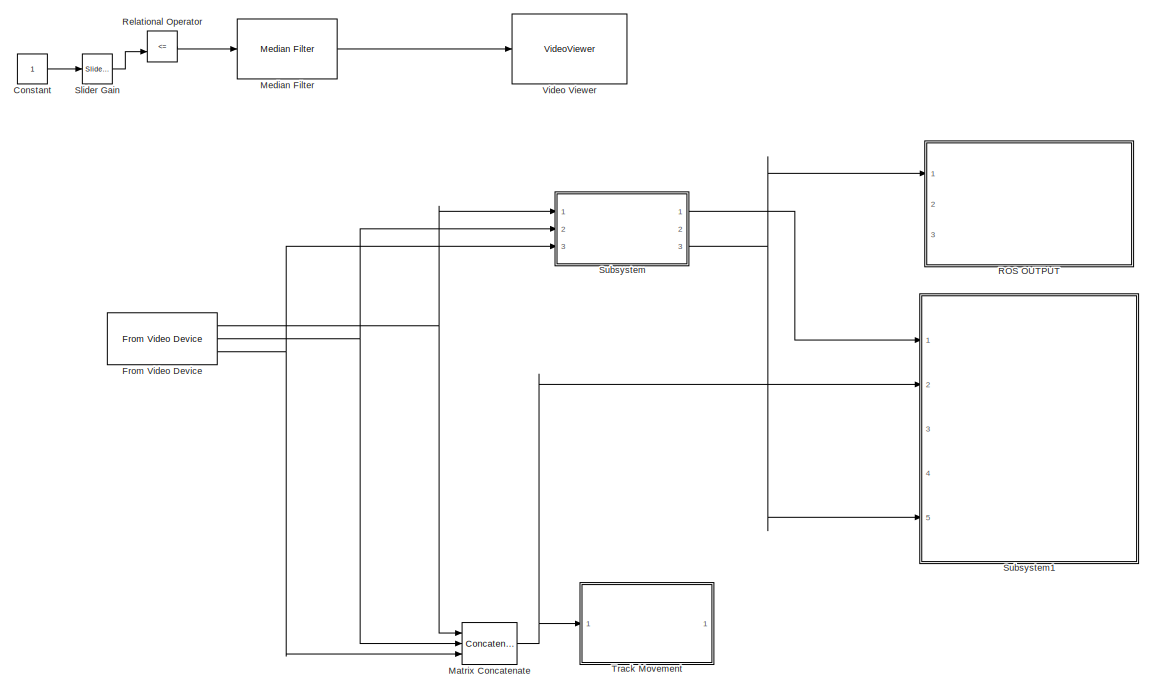
[diagram: root canvas - part 1/2, top right region]
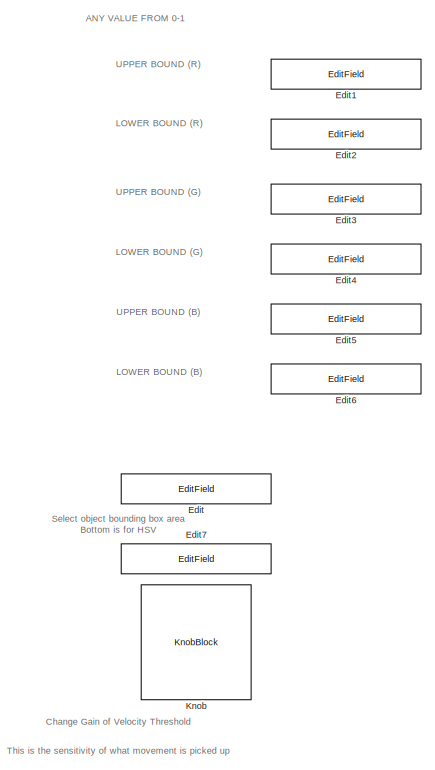
[diagram: root canvas - part 2/2, middle left region]
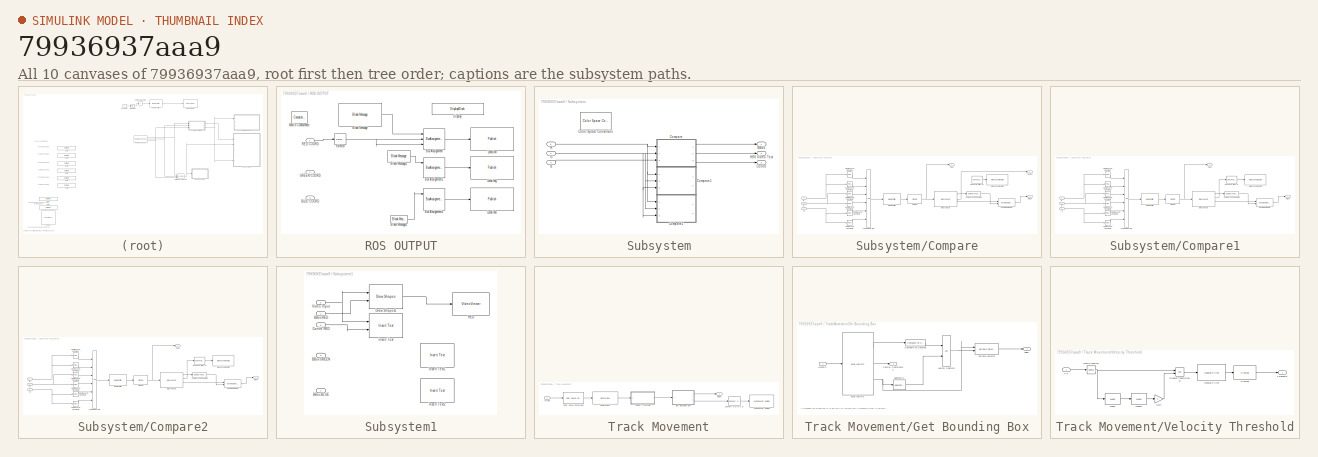
[diagram: thumbnail index - all 10 canvases of the model, root first then tree order]
MODEL slx_79936937aaa9
KIND model
CONFIG AbsTol = auto
CONFIG EnableMultiTasking = off
CONFIG FixedStep = auto
CONFIG MaxStep = auto
CONFIG MinStep = auto
CONFIG RelTol = 1e-3
CONFIG SampleTimeConstraint = Unconstrained
CONFIG Solver = FixedStepAuto
CONFIG SolverName = FixedStepAuto
CONFIG StartTime = 0.0
CONFIG StopTime = inf
BLOCK [Constant] Constant
  Commented = on
BLOCK [EditField] Edit
  Alignment = Center
  Commented = on
  LabelPosition = Hide
  ShowInitialText = on
BLOCK [EditField] Edit1
  Alignment = Center
  LabelPosition = Hide
  ShowInitialText = on
BLOCK [EditField] Edit2
  Alignment = Center
  LabelPosition = Hide
  ShowInitialText = on
BLOCK [EditField] Edit3
  Alignment = Center
  LabelPosition = Hide
  ShowInitialText = on
BLOCK [EditField] Edit4
  Alignment = Center
  LabelPosition = Hide
  ShowInitialText = on
BLOCK [EditField] Edit5
  Alignment = Center
  LabelPosition = Hide
  ShowInitialText = on
BLOCK [EditField] Edit6
  Alignment = Center
  LabelPosition = Hide
  ShowInitialText = on
BLOCK [EditField] Edit7
  Alignment = Center
  Commented = on
  LabelPosition = Hide
  ShowInitialText = on
BLOCK [Reference] From Video Device  REF=imaqlib/From Video Device
  Ports = [0, 3]
  SourceBlock = imaqlib/From Video Device
  SourceProductBaseCode = IA
  SourceProductName = Image Acquisition Toolbox
  SourceType = From Video Device
  UserDataPersistent = on
BLOCK [KnobBlock] Knob
  Commented = on
BLOCK [Concatenate] Matrix Concatenate
  ConcatenateDimension = 3
  Mode = Multidimensional array
  NumInputs = 3
  Ports = [3, 1]
BLOCK [Reference] Median Filter  REF=visionanalysis/Median Filter
  Commented = on
  Ports = [1, 1]
  SourceBlock = visionanalysis/Median Filter
  SourceProductBaseCode = VP
  SourceProductName = Computer Vision Toolbox
  SourceType = Median Filter
BLOCK [SubSystem] ROS OUTPUT
  Ports = [3]
  RequestExecContextInheritance = off
BLOCK [Inport] ROS OUTPUT/BLUE COORD
  IconDisplay = Port number
  Port = 3
BLOCK [Reference] ROS OUTPUT/Blank Message  REF=robotlib/Blank Message
  Ports = [0, 1]
  SourceBlock = robotlib/Blank Message
  SourceProductBaseCode = RR
  SourceProductName = ROS Toolbox
  SourceType = ROS Blank Message
BLOCK [Reference] ROS OUTPUT/Blank Message1  REF=robotlib/Blank Message
  Ports = [0, 1]
  SourceBlock = robotlib/Blank Message
  SourceProductBaseCode = RR
  SourceProductName = ROS Toolbox
  SourceType = ROS Blank Message
BLOCK [Reference] ROS OUTPUT/Blank Message2  REF=robotlib/Blank Message
  Ports = [0, 1]
  SourceBlock = robotlib/Blank Message
  SourceProductBaseCode = RR
  SourceProductName = ROS Toolbox
  SourceType = ROS Blank Message
BLOCK [BusAssignment] ROS OUTPUT/Bus Assignment
  AssignedSignals = X,Y
  Ports = [3, 1]
BLOCK [BusAssignment] ROS OUTPUT/Bus Assignment1
  AssignedSignals = X,Y
  Ports = [3, 1]
BLOCK [BusAssignment] ROS OUTPUT/Bus Assignment2
  AssignedSignals = X,Y
  Ports = [3, 1]
BLOCK [DisplayBlock] ROS OUTPUT/Display
  Format = short
  LabelPosition = Hide
  Transparency = 1
BLOCK [Inport] ROS OUTPUT/GREEN COORD
  IconDisplay = Port number
  Port = 2
BLOCK [Reference] ROS OUTPUT/Locationb  REF=robotlib/Publish
  Commented = on
  Ports = [1]
  SourceBlock = robotlib/Publish
  SourceProductBaseCode = RR
  SourceProductName = ROS Toolbox
  SourceType = ROS Publish
BLOCK [Reference] ROS OUTPUT/Locationg  REF=robotlib/Publish
  Commented = on
  Ports = [1]
  SourceBlock = robotlib/Publish
  SourceProductBaseCode = RR
  SourceProductName = ROS Toolbox
  SourceType = ROS Publish
BLOCK [Reference] ROS OUTPUT/Locationr  REF=robotlib/Publish
  Commented = on
  Ports = [1]
  SourceBlock = robotlib/Publish
  SourceProductBaseCode = RR
  SourceProductName = ROS Toolbox
  SourceType = ROS Publish
BLOCK [Concatenate] ROS OUTPUT/Matrix Concatenate
  Commented = on
  Mode = Multidimensional array
  NumInputs = 3
  Ports = [3, 1]
BLOCK [Inport] ROS OUTPUT/RED COORD
  IconDisplay = Port number
BLOCK [Selector] ROS OUTPUT/Selector
  IndexOptions = Index vector (dialog),Index vector (dialog)
  Indices = 1,2
  InputPortWidth = 3
  NumberOfDimensions = 2
  OutputSizes = 1,1
  Ports = [1, 1]
BLOCK [RelationalOperator] Relational Operator
  Commented = on
  InputSameDT = off
  Operator = <=
  OutDataTypeStr = boolean
  Ports = [2, 1]
  RndMeth = Simplest
BLOCK [Reference] Slider Gain  REF=simulink/Math
Operations/Slider
Gain
  Commented = on
  Ports = [1, 1]
  SourceBlock = simulink/Math\nOperations/Slider\nGain
  SourceProductBaseCode = SL
  SourceProductName = Simulink
  SourceType = Slider Gain
BLOCK [SubSystem] Subsystem
  Ports = [3, 3]
  RequestExecContextInheritance = off
BLOCK [Inport] Subsystem/B
  IconDisplay = Port number
  Port = 3
BLOCK [Outport] Subsystem/BBox
  IconDisplay = Port number
BLOCK [Outport] Subsystem/Centre
  IconDisplay = Port number
  Port = 3
BLOCK [Reference] Subsystem/Color Space Conversion  REF=visionconversions/Color Space
 Conversion
  Commented = on
  Ports = [3, 3]
  SourceBlock = visionconversions/Color Space\n Conversion
  SourceProductBaseCode = VP
  SourceProductName = Computer Vision Toolbox
  SourceType = Color Space Conversion
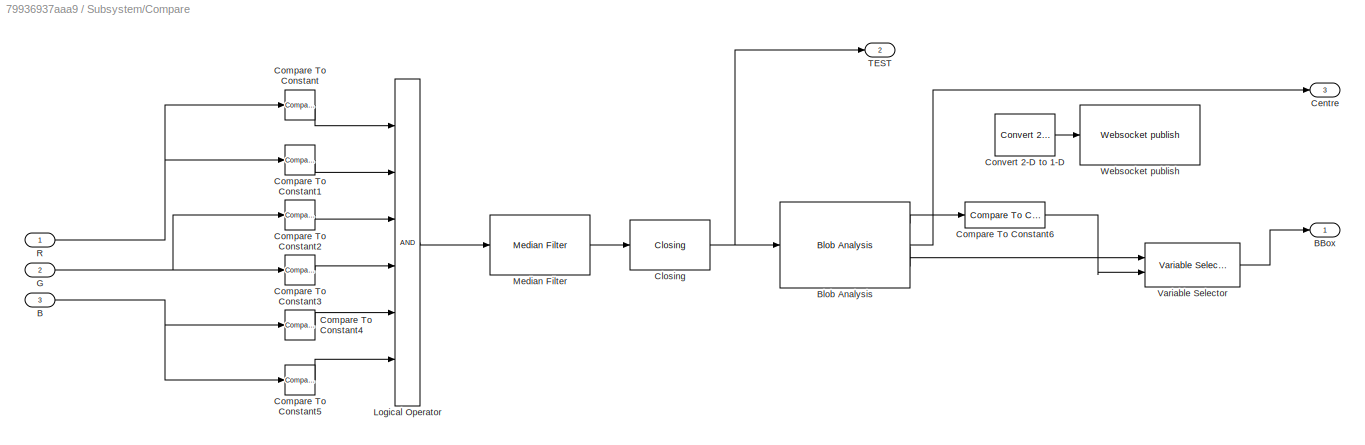
BLOCK [SubSystem] Subsystem/Compare
  Ports = [3, 3]
  RequestExecContextInheritance = off
BLOCK [Inport] Subsystem/Compare/B
  IconDisplay = Port number
  Port = 3
BLOCK [Outport] Subsystem/Compare/BBox
  IconDisplay = Port number
BLOCK [Reference] Subsystem/Compare/Blob Analysis  REF=visionstatistics/Blob Analysis
  Ports = [1, 3]
  SourceBlock = visionstatistics/Blob Analysis
  SourceProductBaseCode = VP
  SourceProductName = Computer Vision Toolbox
  SourceType = Blob Analysis
  Tag = vipblks_row_conv
BLOCK [Outport] Subsystem/Compare/Centre
  IconDisplay = Port number
  Port = 3
BLOCK [Reference] Subsystem/Compare/Closing  REF=visionmorphops/Closing
  Ports = [1, 1]
  SourceBlock = visionmorphops/Closing
  SourceProductBaseCode = VP
  SourceProductName = Computer Vision Toolbox
  SourceType = Closing
BLOCK [Reference] Subsystem/Compare/Compare To Constant  REF=simulink/Logic and Bit
Operations/Compare
To Constant
  Ports = [1, 1]
  SourceBlock = simulink/Logic and Bit\nOperations/Compare\nTo Constant
  SourceProductBaseCode = SL
  SourceProductName = Simulink
  SourceType = Compare To Constant
BLOCK [Reference] Subsystem/Compare/Compare To Constant1  REF=simulink/Logic and Bit
Operations/Compare
To Constant
  Ports = [1, 1]
  SourceBlock = simulink/Logic and Bit\nOperations/Compare\nTo Constant
  SourceProductBaseCode = SL
  SourceProductName = Simulink
  SourceType = Compare To Constant
BLOCK [Reference] Subsystem/Compare/Compare To Constant2  REF=simulink/Logic and Bit
Operations/Compare
To Constant
  Ports = [1, 1]
  SourceBlock = simulink/Logic and Bit\nOperations/Compare\nTo Constant
  SourceProductBaseCode = SL
  SourceProductName = Simulink
  SourceType = Compare To Constant
BLOCK [Reference] Subsystem/Compare/Compare To Constant3  REF=simulink/Logic and Bit
Operations/Compare
To Constant
  Ports = [1, 1]
  SourceBlock = simulink/Logic and Bit\nOperations/Compare\nTo Constant
  SourceProductBaseCode = SL
  SourceProductName = Simulink
  SourceType = Compare To Constant
BLOCK [Reference] Subsystem/Compare/Compare To Constant4  REF=simulink/Logic and Bit
Operations/Compare
To Constant
  Ports = [1, 1]
  SourceBlock = simulink/Logic and Bit\nOperations/Compare\nTo Constant
  SourceProductBaseCode = SL
  SourceProductName = Simulink
  SourceType = Compare To Constant
BLOCK [Reference] Subsystem/Compare/Compare To Constant5  REF=simulink/Logic and Bit
Operations/Compare
To Constant
  Ports = [1, 1]
  SourceBlock = simulink/Logic and Bit\nOperations/Compare\nTo Constant
  SourceProductBaseCode = SL
  SourceProductName = Simulink
  SourceType = Compare To Constant
BLOCK [Reference] Subsystem/Compare/Compare To Constant6  REF=simulink/Logic and Bit
Operations/Compare
To Constant
  Ports = [1, 1]
  SourceBlock = simulink/Logic and Bit\nOperations/Compare\nTo Constant
  SourceProductBaseCode = SL
  SourceProductName = Simulink
  SourceType = Compare To Constant
BLOCK [Reference] Subsystem/Compare/Convert 2-D to 1-D  REF=dspsigattribs/Convert 2-D to 1-D
  Commented = on
  Ports = [1, 1]
  SourceBlock = dspsigattribs/Convert 2-D to 1-D
  SourceProductBaseCode = DS
  SourceProductName = DSP System Toolbox
  SourceType = Convert 2-D to 1-D
BLOCK [Inport] Subsystem/Compare/G
  IconDisplay = Port number
  Port = 2
BLOCK [Logic] Subsystem/Compare/Logical Operator
  AllPortsSameDT = off
  Inputs = 6
  OutDataTypeStr = boolean
  Ports = [6, 1]
BLOCK [Reference] Subsystem/Compare/Median Filter  REF=visionanalysis/Median Filter
  Ports = [1, 1]
  SourceBlock = visionanalysis/Median Filter
  SourceProductBaseCode = VP
  SourceProductName = Computer Vision Toolbox
  SourceType = Median Filter
BLOCK [Inport] Subsystem/Compare/R
  IconDisplay = Port number
BLOCK [Outport] Subsystem/Compare/TEST
  IconDisplay = Port number
  Port = 2
BLOCK [Reference] Subsystem/Compare/Variable Selector  REF=dspindex/Variable
Selector
  Ports = [2, 1]
  SourceBlock = dspindex/Variable\nSelector
  SourceProductBaseCode = DS
  SourceProductName = DSP System Toolbox
  SourceType = Variable Selector
BLOCK [Reference] Subsystem/Compare/Websocket publish  REF=raspberrypilib/Websocket publish
  Commented = on
  Ports = [1]
  SourceBlock = raspberrypilib/Websocket publish
  SourceProductBaseCode = RASPPI
  SourceProductName = Simulink Support Package for Raspberry Pi Hardware
  SourceType = codertarget.raspi.internal.webPublish
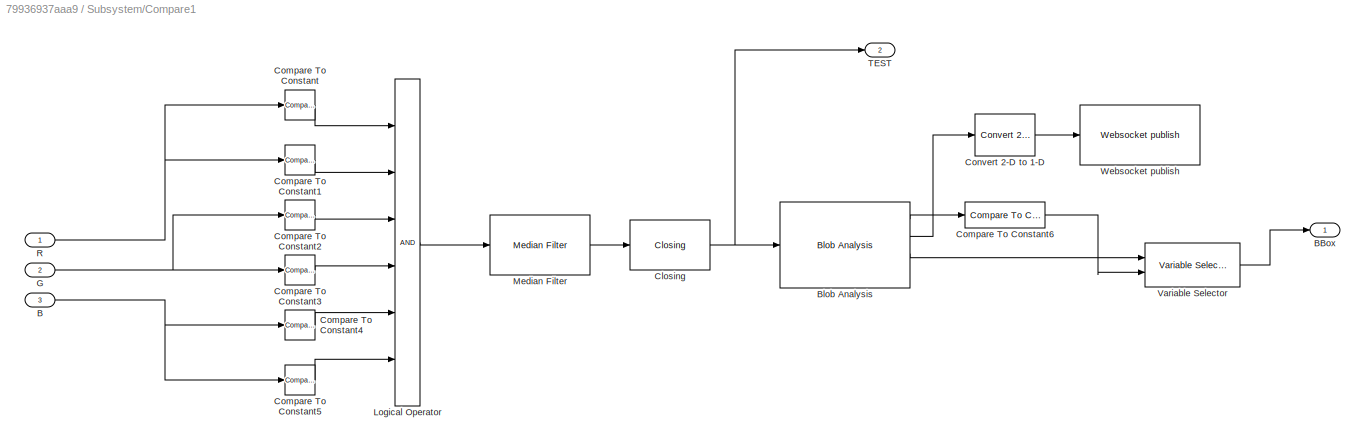
BLOCK [SubSystem] Subsystem/Compare1
  Commented = on
  Ports = [3, 2]
  RequestExecContextInheritance = off
BLOCK [Inport] Subsystem/Compare1/B
  IconDisplay = Port number
  Port = 3
BLOCK [Outport] Subsystem/Compare1/BBox
  IconDisplay = Port number
BLOCK [Reference] Subsystem/Compare1/Blob Analysis  REF=visionstatistics/Blob Analysis
  Ports = [1, 4]
  SourceBlock = visionstatistics/Blob Analysis
  SourceProductBaseCode = VP
  SourceProductName = Computer Vision Toolbox
  SourceType = Blob Analysis
  Tag = vipblks_row_conv
BLOCK [Reference] Subsystem/Compare1/Closing  REF=visionmorphops/Closing
  Ports = [1, 1]
  SourceBlock = visionmorphops/Closing
  SourceProductBaseCode = VP
  SourceProductName = Computer Vision Toolbox
  SourceType = Closing
BLOCK [Reference] Subsystem/Compare1/Compare To Constant  REF=simulink/Logic and Bit
Operations/Compare
To Constant
  Ports = [1, 1]
  SourceBlock = simulink/Logic and Bit\nOperations/Compare\nTo Constant
  SourceProductBaseCode = SL
  SourceProductName = Simulink
  SourceType = Compare To Constant
BLOCK [Reference] Subsystem/Compare1/Compare To Constant1  REF=simulink/Logic and Bit
Operations/Compare
To Constant
  Ports = [1, 1]
  SourceBlock = simulink/Logic and Bit\nOperations/Compare\nTo Constant
  SourceProductBaseCode = SL
  SourceProductName = Simulink
  SourceType = Compare To Constant
BLOCK [Reference] Subsystem/Compare1/Compare To Constant2  REF=simulink/Logic and Bit
Operations/Compare
To Constant
  Ports = [1, 1]
  SourceBlock = simulink/Logic and Bit\nOperations/Compare\nTo Constant
  SourceProductBaseCode = SL
  SourceProductName = Simulink
  SourceType = Compare To Constant
BLOCK [Reference] Subsystem/Compare1/Compare To Constant3  REF=simulink/Logic and Bit
Operations/Compare
To Constant
  Ports = [1, 1]
  SourceBlock = simulink/Logic and Bit\nOperations/Compare\nTo Constant
  SourceProductBaseCode = SL
  SourceProductName = Simulink
  SourceType = Compare To Constant
BLOCK [Reference] Subsystem/Compare1/Compare To Constant4  REF=simulink/Logic and Bit
Operations/Compare
To Constant
  Ports = [1, 1]
  SourceBlock = simulink/Logic and Bit\nOperations/Compare\nTo Constant
  SourceProductBaseCode = SL
  SourceProductName = Simulink
  SourceType = Compare To Constant
BLOCK [Reference] Subsystem/Compare1/Compare To Constant5  REF=simulink/Logic and Bit
Operations/Compare
To Constant
  Ports = [1, 1]
  SourceBlock = simulink/Logic and Bit\nOperations/Compare\nTo Constant
  SourceProductBaseCode = SL
  SourceProductName = Simulink
  SourceType = Compare To Constant
BLOCK [Reference] Subsystem/Compare1/Compare To Constant6  REF=simulink/Logic and Bit
Operations/Compare
To Constant
  Ports = [1, 1]
  SourceBlock = simulink/Logic and Bit\nOperations/Compare\nTo Constant
  SourceProductBaseCode = SL
  SourceProductName = Simulink
  SourceType = Compare To Constant
BLOCK [Reference] Subsystem/Compare1/Convert 2-D to 1-D  REF=dspsigattribs/Convert 2-D to 1-D
  Commented = on
  Ports = [1, 1]
  SourceBlock = dspsigattribs/Convert 2-D to 1-D
  SourceProductBaseCode = DS
  SourceProductName = DSP System Toolbox
  SourceType = Convert 2-D to 1-D
BLOCK [Inport] Subsystem/Compare1/G
  IconDisplay = Port number
  Port = 2
BLOCK [Logic] Subsystem/Compare1/Logical Operator
  AllPortsSameDT = off
  Inputs = 6
  OutDataTypeStr = boolean
  Ports = [6, 1]
BLOCK [Reference] Subsystem/Compare1/Median Filter  REF=visionanalysis/Median Filter
  Ports = [1, 1]
  SourceBlock = visionanalysis/Median Filter
  SourceProductBaseCode = VP
  SourceProductName = Computer Vision Toolbox
  SourceType = Median Filter
BLOCK [Inport] Subsystem/Compare1/R
  IconDisplay = Port number
BLOCK [Outport] Subsystem/Compare1/TEST
  IconDisplay = Port number
  Port = 2
BLOCK [Reference] Subsystem/Compare1/Variable Selector  REF=dspindex/Variable
Selector
  Ports = [2, 1]
  SourceBlock = dspindex/Variable\nSelector
  SourceProductBaseCode = DS
  SourceProductName = DSP System Toolbox
  SourceType = Variable Selector
BLOCK [Reference] Subsystem/Compare1/Websocket publish  REF=raspberrypilib/Websocket publish
  Commented = on
  Ports = [1]
  SourceBlock = raspberrypilib/Websocket publish
  SourceProductBaseCode = RASPPI
  SourceProductName = Simulink Support Package for Raspberry Pi Hardware
  SourceType = codertarget.raspi.internal.webPublish
BLOCK [SubSystem] Subsystem/Compare2
  Commented = on
  Ports = [3, 2]
  RequestExecContextInheritance = off
BLOCK [Inport] Subsystem/Compare2/B
  IconDisplay = Port number
  Port = 3
BLOCK [Outport] Subsystem/Compare2/BBox
  IconDisplay = Port number
BLOCK [Reference] Subsystem/Compare2/Blob Analysis  REF=visionstatistics/Blob Analysis
  Ports = [1, 4]
  SourceBlock = visionstatistics/Blob Analysis
  SourceProductBaseCode = VP
  SourceProductName = Computer Vision Toolbox
  SourceType = Blob Analysis
  Tag = vipblks_row_conv
BLOCK [Reference] Subsystem/Compare2/Closing  REF=visionmorphops/Closing
  Ports = [1, 1]
  SourceBlock = visionmorphops/Closing
  SourceProductBaseCode = VP
  SourceProductName = Computer Vision Toolbox
  SourceType = Closing
BLOCK [Reference] Subsystem/Compare2/Compare To Constant  REF=simulink/Logic and Bit
Operations/Compare
To Constant
  Ports = [1, 1]
  SourceBlock = simulink/Logic and Bit\nOperations/Compare\nTo Constant
  SourceProductBaseCode = SL
  SourceProductName = Simulink
  SourceType = Compare To Constant
BLOCK [Reference] Subsystem/Compare2/Compare To Constant1  REF=simulink/Logic and Bit
Operations/Compare
To Constant
  Ports = [1, 1]
  SourceBlock = simulink/Logic and Bit\nOperations/Compare\nTo Constant
  SourceProductBaseCode = SL
  SourceProductName = Simulink
  SourceType = Compare To Constant
BLOCK [Reference] Subsystem/Compare2/Compare To Constant2  REF=simulink/Logic and Bit
Operations/Compare
To Constant
  Ports = [1, 1]
  SourceBlock = simulink/Logic and Bit\nOperations/Compare\nTo Constant
  SourceProductBaseCode = SL
  SourceProductName = Simulink
  SourceType = Compare To Constant
BLOCK [Reference] Subsystem/Compare2/Compare To Constant3  REF=simulink/Logic and Bit
Operations/Compare
To Constant
  Ports = [1, 1]
  SourceBlock = simulink/Logic and Bit\nOperations/Compare\nTo Constant
  SourceProductBaseCode = SL
  SourceProductName = Simulink
  SourceType = Compare To Constant
BLOCK [Reference] Subsystem/Compare2/Compare To Constant4  REF=simulink/Logic and Bit
Operations/Compare
To Constant
  Ports = [1, 1]
  SourceBlock = simulink/Logic and Bit\nOperations/Compare\nTo Constant
  SourceProductBaseCode = SL
  SourceProductName = Simulink
  SourceType = Compare To Constant
BLOCK [Reference] Subsystem/Compare2/Compare To Constant5  REF=simulink/Logic and Bit
Operations/Compare
To Constant
  Ports = [1, 1]
  SourceBlock = simulink/Logic and Bit\nOperations/Compare\nTo Constant
  SourceProductBaseCode = SL
  SourceProductName = Simulink
  SourceType = Compare To Constant
BLOCK [Reference] Subsystem/Compare2/Compare To Constant6  REF=simulink/Logic and Bit
Operations/Compare
To Constant
  Ports = [1, 1]
  SourceBlock = simulink/Logic and Bit\nOperations/Compare\nTo Constant
  SourceProductBaseCode = SL
  SourceProductName = Simulink
  SourceType = Compare To Constant
BLOCK [Reference] Subsystem/Compare2/Convert 2-D to 1-D  REF=dspsigattribs/Convert 2-D to 1-D
  Commented = on
  Ports = [1, 1]
  SourceBlock = dspsigattribs/Convert 2-D to 1-D
  SourceProductBaseCode = DS
  SourceProductName = DSP System Toolbox
  SourceType = Convert 2-D to 1-D
BLOCK [Inport] Subsystem/Compare2/G
  IconDisplay = Port number
  Port = 2
BLOCK [Logic] Subsystem/Compare2/Logical Operator
  AllPortsSameDT = off
  Inputs = 6
  OutDataTypeStr = boolean
  Ports = [6, 1]
BLOCK [Reference] Subsystem/Compare2/Median Filter  REF=visionanalysis/Median Filter
  Ports = [1, 1]
  SourceBlock = visionanalysis/Median Filter
  SourceProductBaseCode = VP
  SourceProductName = Computer Vision Toolbox
  SourceType = Median Filter
BLOCK [Inport] Subsystem/Compare2/R
  IconDisplay = Port number
BLOCK [Outport] Subsystem/Compare2/TEST
  IconDisplay = Port number
  Port = 2
BLOCK [Reference] Subsystem/Compare2/Variable Selector  REF=dspindex/Variable
Selector
  Ports = [2, 1]
  SourceBlock = dspindex/Variable\nSelector
  SourceProductBaseCode = DS
  SourceProductName = DSP System Toolbox
  SourceType = Variable Selector
BLOCK [Reference] Subsystem/Compare2/Websocket publish  REF=raspberrypilib/Websocket publish
  Commented = on
  Ports = [1]
  SourceBlock = raspberrypilib/Websocket publish
  SourceProductBaseCode = RASPPI
  SourceProductName = Simulink Support Package for Raspberry Pi Hardware
  SourceType = codertarget.raspi.internal.webPublish
BLOCK [Inport] Subsystem/G
  IconDisplay = Port number
  Port = 2
BLOCK [Outport] Subsystem/HSV Video Test
  IconDisplay = Port number
  Port = 2
BLOCK [Inport] Subsystem/R
  IconDisplay = Port number
BLOCK [SubSystem] Subsystem1
  Ports = [5]
  RequestExecContextInheritance = off
BLOCK [Inport] Subsystem1/BBox BLUE
  IconDisplay = Port number
  Port = 4
BLOCK [Inport] Subsystem1/BBox GREEN
  IconDisplay = Port number
  Port = 3
BLOCK [Inport] Subsystem1/BBox RED
  IconDisplay = Port number
BLOCK [Inport] Subsystem1/Centre RED
  IconDisplay = Port number
  Port = 5
BLOCK [Reference] Subsystem1/Draw Shapes1  REF=visiontextngfix/Draw Shapes
  Ports = [2, 1]
  SourceBlock = visiontextngfix/Draw Shapes
  SourceProductBaseCode = VP
  SourceProductName = Computer Vision Toolbox
  SourceType = Draw Shapes
BLOCK [Reference] Subsystem1/Insert Text  REF=visiontextngfix/Insert Text
  Ports = [2, 1]
  SourceBlock = visiontextngfix/Insert Text
  SourceProductBaseCode = VP
  SourceProductName = Computer Vision Toolbox
  SourceType = Insert Text
BLOCK [Reference] Subsystem1/Insert Text1  REF=visiontextngfix/Insert Text
  Commented = on
  Ports = [1, 1]
  SourceBlock = visiontextngfix/Insert Text
  SourceProductBaseCode = VP
  SourceProductName = Computer Vision Toolbox
  SourceType = Insert Text
BLOCK [Reference] Subsystem1/Insert Text2  REF=visiontextngfix/Insert Text
  Commented = on
  Ports = [1, 1]
  SourceBlock = visiontextngfix/Insert Text
  SourceProductBaseCode = VP
  SourceProductName = Computer Vision Toolbox
  SourceType = Insert Text
BLOCK [VideoViewer] Subsystem1/RED
  FigPos = [962 1037 958 929]
  Ports = [1]
  ScopeSpecificationString = vipscopes.VideoViewerScopeCfg('CurrentConfiguration', extmgr.ConfigurationSet(extmgr.Configuration('Core','General UI',true),extmgr.Configuration('Core','Source UI',true),extmgr.Configuration('Sources','WiredSimulink',true),extmgr.Configuration('Visuals','Video',true),extmgr.Configuration('Tools','Image Navigation Tools',true),extmgr.Configuration('Tools','Image Tool',true),extmgr.Configuration('T...<+100ch>
BLOCK [Inport] Subsystem1/Video Input
  IconDisplay = Port number
  Port = 2
BLOCK [SubSystem] Track Movement
  Commented = on
  Ports = [1, 1]
  RequestExecContextInheritance = off
BLOCK [Outport] Track Movement/BBox
  IconDisplay = Port number
BLOCK [Reference] Track Movement/Color Space Conversion  REF=visionconversions/Color Space
 Conversion
  Ports = [1, 1]
  SourceBlock = visionconversions/Color Space\n Conversion
  SourceProductBaseCode = VP
  SourceProductName = Computer Vision Toolbox
  SourceType = Color Space Conversion
BLOCK [Reference] Track Movement/Convert 2-D to 1-D  REF=dspsigattribs/Convert 2-D to 1-D
  Ports = [1, 1]
  SourceBlock = dspsigattribs/Convert 2-D to 1-D
  SourceProductBaseCode = DS
  SourceProductName = DSP System Toolbox
  SourceType = Convert 2-D to 1-D
BLOCK [SubSystem] Track Movement/Get Bounding Box
  Ports = [1, 2]
  RequestExecContextInheritance = off
BLOCK [Outport] Track Movement/Get Bounding Box/BBox
  IconDisplay = Port number
BLOCK [Reference] Track Movement/Get Bounding Box/Blob Analysis  REF=visionstatistics/Blob Analysis
  Ports = [1, 3]
  SourceBlock = visionstatistics/Blob Analysis
  SourceProductBaseCode = VP
  SourceProductName = Computer Vision Toolbox
  SourceType = Blob Analysis
  Tag = vipblks_row_conv
BLOCK [Outport] Track Movement/Get Bounding Box/Central Coordinates
  IconDisplay = Port number
  Port = 2
BLOCK [Reference] Track Movement/Get Bounding Box/Compare To Constant  REF=simulink/Logic and Bit
Operations/Compare
To Constant
  Ports = [1, 1]
  SourceBlock = simulink/Logic and Bit\nOperations/Compare\nTo Constant
  SourceProductBaseCode = SL
  SourceProductName = Simulink
  SourceType = Compare To Constant
BLOCK [Inport] Track Movement/Get Bounding Box/Intensity
  IconDisplay = Port number
BLOCK [Logic] Track Movement/Get Bounding Box/Logical Operator
  AllPortsSameDT = off
  OutDataTypeStr = boolean
  Ports = [2, 1]
BLOCK [Reference] Track Movement/Get Bounding Box/Submatrix  REF=dspmtrx3/Submatrix
  Ports = [1, 1]
  SourceBlock = dspmtrx3/Submatrix
  SourceProductBaseCode = DS
  SourceProductName = DSP System Toolbox
  SourceType = Submatrix
BLOCK [Reference] Track Movement/Get Bounding Box/Variable Selector  REF=dspindex/Variable
Selector
  Ports = [2, 1]
  SourceBlock = dspindex/Variable\nSelector
  SourceProductBaseCode = DS
  SourceProductName = DSP System Toolbox
  SourceType = Variable Selector
BLOCK [Inport] Track Movement/Image
  IconDisplay = Port number
BLOCK [Reference] Track Movement/Optical Flow  REF=visionanalysis/Optical Flow
  Ports = [1, 1]
  SourceBlock = visionanalysis/Optical Flow
  SourceProductBaseCode = VP
  SourceProductName = Computer Vision Toolbox
  SourceType = Optical Flow
BLOCK [SubSystem] Track Movement/Velocity Threshold
  Ports = [1, 1]
  RequestExecContextInheritance = off
BLOCK [Reference] Track Movement/Velocity Threshold/Closing  REF=visionmorphops/Closing
  Ports = [1, 1]
  SourceBlock = visionmorphops/Closing
  SourceProductBaseCode = VP
  SourceProductName = Computer Vision Toolbox
  SourceType = Closing
BLOCK [Gain] Track Movement/Velocity Threshold/Gain
  OutDataTypeStr = Inherit: Inherit via internal rule
  ParamDataTypeStr = Inherit: Inherit via internal rule
  SaturateOnIntegerOverflow = off
BLOCK [RelationalOperator] Track Movement/Velocity Threshold/GreaterThanOrEqual
  InputSameDT = off
  OutDataTypeStr = boolean
  Ports = [2, 1]
  RndMeth = Simplest
BLOCK [Math] Track Movement/Velocity Threshold/Math Function
  Operator = magnitude^2
  Ports = [1, 1]
  SignedPower = off
BLOCK [Reference] Track Movement/Velocity Threshold/Mean  REF=dspstat3/Mean
  Ports = [1, 1]
  SourceBlock = dspstat3/Mean
  SourceProductBaseCode = DS
  SourceProductName = DSP System Toolbox
  SourceType = Mean
  UserDataPersistent = on
BLOCK [Reference] Track Movement/Velocity Threshold/Mean1  REF=dspstat3/Mean
  Ports = [1, 1]
  SourceBlock = dspstat3/Mean
  SourceProductBaseCode = DS
  SourceProductName = DSP System Toolbox
  SourceType = Mean
  UserDataPersistent = on
BLOCK [Reference] Track Movement/Velocity Threshold/Median Filter  REF=visionanalysis/Median Filter
  Ports = [1, 1]
  SourceBlock = visionanalysis/Median Filter
  SourceProductBaseCode = VP
  SourceProductName = Computer Vision Toolbox
  SourceType = Median Filter
BLOCK [Outport] Track Movement/Velocity Threshold/Threshold
  IconDisplay = Port number
BLOCK [Inport] Track Movement/Velocity Threshold/Vin
  IconDisplay = Port number
BLOCK [Reference] Track Movement/Websocket publish  REF=raspberrypilib/Websocket publish
  Ports = [1]
  SourceBlock = raspberrypilib/Websocket publish
  SourceProductBaseCode = RASPPI
  SourceProductName = Simulink Support Package for Raspberry Pi Hardware
  SourceType = codertarget.raspi.internal.webPublish
BLOCK [VideoViewer] Video Viewer
  Commented = on
  FigPos = [432 922 700 548]
  Ports = [1]
  ScopeSpecificationString = vipscopes.VideoViewerScopeCfg('CurrentConfiguration', extmgr.ConfigurationSet(extmgr.Configuration('Core','General UI',true),extmgr.Configuration('Core','Source UI',true),extmgr.Configuration('Sources','WiredSimulink',true),extmgr.Configuration('Visuals','Video',true),extmgr.Configuration('Tools','Image Navigation Tools',true),extmgr.Configuration('Tools','Image Tool',true),extmgr.Configuration('T...<+75ch>
ANNOTATION (root): ANY VALUE FROM 0-1
ANNOTATION (root): Change Gain of Velocity Threshold
ANNOTATION (root): LOWER BOUND (B)
ANNOTATION (root): LOWER BOUND (G)
ANNOTATION (root): LOWER BOUND (R)
ANNOTATION (root): Select object bounding box area Bottom is for HSV
ANNOTATION (root): UPPER BOUND (B)
ANNOTATION (root): UPPER BOUND (G)
ANNOTATION (root): UPPER BOUND (R)
ANNOTATION (root): This is the sensitivity of what movement is picked up
ANNOTATION Track Movement/Get Bounding Box: //Changed the SUBMATRIX to be the first column only (Research what is correct) ---> Default is all columns (50x4)//
LINE Constant:1 -> Slider Gain:1
NET From Video Device:1 -> Matrix Concatenate:1, Subsystem:1
NET From Video Device:2 -> Matrix Concatenate:2, Subsystem:2
NET From Video Device:3 -> Matrix Concatenate:3, Subsystem:3
NET Matrix Concatenate:1 -> Subsystem1:2, Track Movement:1
LINE Median Filter:1 -> Video Viewer:1
LINE ROS OUTPUT/Blank Message1:1 -> ROS OUTPUT/Bus Assignment1:1
LINE ROS OUTPUT/Blank Message2:1 -> ROS OUTPUT/Bus Assignment2:1
LINE ROS OUTPUT/Blank Message:1 -> ROS OUTPUT/Bus Assignment:1
LINE ROS OUTPUT/Bus Assignment1:1 -> ROS OUTPUT/Locationg:1
LINE ROS OUTPUT/Bus Assignment2:1 -> ROS OUTPUT/Locationb:1
LINE ROS OUTPUT/Bus Assignment:1 -> ROS OUTPUT/Locationr:1
LINE ROS OUTPUT/RED COORD:1 -> ROS OUTPUT/Selector:1
NET ROS OUTPUT/Selector:1 -> ROS OUTPUT/Bus Assignment:2, ROS OUTPUT/Bus Assignment:3
LINE Relational Operator:1 -> Median Filter:1
LINE Slider Gain:1 -> Relational Operator:2
LINE Subsystem/B:1 -> Subsystem/Compare:3
NET Subsystem/Compare/B:1 -> Subsystem/Compare/Compare To Constant4:1, Subsystem/Compare/Compare To Constant5:1
LINE Subsystem/Compare/Blob Analysis:1 -> Subsystem/Compare/Compare To Constant6:1
LINE Subsystem/Compare/Blob Analysis:2 -> Subsystem/Compare/Centre:1
LINE Subsystem/Compare/Blob Analysis:3 -> Subsystem/Compare/Variable Selector:1
NET Subsystem/Compare/Closing:1 -> Subsystem/Compare/Blob Analysis:1, Subsystem/Compare/TEST:1
LINE Subsystem/Compare/Compare To Constant1:1 -> Subsystem/Compare/Logical Operator:2
LINE Subsystem/Compare/Compare To Constant2:1 -> Subsystem/Compare/Logical Operator:3
LINE Subsystem/Compare/Compare To Constant3:1 -> Subsystem/Compare/Logical Operator:4
LINE Subsystem/Compare/Compare To Constant4:1 -> Subsystem/Compare/Logical Operator:5
LINE Subsystem/Compare/Compare To Constant5:1 -> Subsystem/Compare/Logical Operator:6
LINE Subsystem/Compare/Compare To Constant6:1 -> Subsystem/Compare/Variable Selector:2
LINE Subsystem/Compare/Compare To Constant:1 -> Subsystem/Compare/Logical Operator:1
LINE Subsystem/Compare/Convert 2-D to 1-D:1 -> Subsystem/Compare/Websocket publish:1
NET Subsystem/Compare/G:1 -> Subsystem/Compare/Compare To Constant2:1, Subsystem/Compare/Compare To Constant3:1
LINE Subsystem/Compare/Logical Operator:1 -> Subsystem/Compare/Median Filter:1
LINE Subsystem/Compare/Median Filter:1 -> Subsystem/Compare/Closing:1
NET Subsystem/Compare/R:1 -> Subsystem/Compare/Compare To Constant1:1, Subsystem/Compare/Compare To Constant:1
LINE Subsystem/Compare/Variable Selector:1 -> Subsystem/Compare/BBox:1
NET Subsystem/Compare1/B:1 -> Subsystem/Compare1/Compare To Constant4:1, Subsystem/Compare1/Compare To Constant5:1
LINE Subsystem/Compare1/Blob Analysis:1 -> Subsystem/Compare1/Compare To Constant6:1
LINE Subsystem/Compare1/Blob Analysis:2 -> Subsystem/Compare1/Convert 2-D to 1-D:1
LINE Subsystem/Compare1/Blob Analysis:3 -> Subsystem/Compare1/Variable Selector:1
NET Subsystem/Compare1/Closing:1 -> Subsystem/Compare1/Blob Analysis:1, Subsystem/Compare1/TEST:1
LINE Subsystem/Compare1/Compare To Constant1:1 -> Subsystem/Compare1/Logical Operator:2
LINE Subsystem/Compare1/Compare To Constant2:1 -> Subsystem/Compare1/Logical Operator:3
LINE Subsystem/Compare1/Compare To Constant3:1 -> Subsystem/Compare1/Logical Operator:4
LINE Subsystem/Compare1/Compare To Constant4:1 -> Subsystem/Compare1/Logical Operator:5
LINE Subsystem/Compare1/Compare To Constant5:1 -> Subsystem/Compare1/Logical Operator:6
LINE Subsystem/Compare1/Compare To Constant6:1 -> Subsystem/Compare1/Variable Selector:2
LINE Subsystem/Compare1/Compare To Constant:1 -> Subsystem/Compare1/Logical Operator:1
LINE Subsystem/Compare1/Convert 2-D to 1-D:1 -> Subsystem/Compare1/Websocket publish:1
NET Subsystem/Compare1/G:1 -> Subsystem/Compare1/Compare To Constant2:1, Subsystem/Compare1/Compare To Constant3:1
LINE Subsystem/Compare1/Logical Operator:1 -> Subsystem/Compare1/Median Filter:1
LINE Subsystem/Compare1/Median Filter:1 -> Subsystem/Compare1/Closing:1
NET Subsystem/Compare1/R:1 -> Subsystem/Compare1/Compare To Constant1:1, Subsystem/Compare1/Compare To Constant:1
LINE Subsystem/Compare1/Variable Selector:1 -> Subsystem/Compare1/BBox:1
NET Subsystem/Compare2/B:1 -> Subsystem/Compare2/Compare To Constant4:1, Subsystem/Compare2/Compare To Constant5:1
LINE Subsystem/Compare2/Blob Analysis:1 -> Subsystem/Compare2/Compare To Constant6:1
LINE Subsystem/Compare2/Blob Analysis:2 -> Subsystem/Compare2/Convert 2-D to 1-D:1
LINE Subsystem/Compare2/Blob Analysis:3 -> Subsystem/Compare2/Variable Selector:1
NET Subsystem/Compare2/Closing:1 -> Subsystem/Compare2/Blob Analysis:1, Subsystem/Compare2/TEST:1
LINE Subsystem/Compare2/Compare To Constant1:1 -> Subsystem/Compare2/Logical Operator:2
LINE Subsystem/Compare2/Compare To Constant2:1 -> Subsystem/Compare2/Logical Operator:3
LINE Subsystem/Compare2/Compare To Constant3:1 -> Subsystem/Compare2/Logical Operator:4
LINE Subsystem/Compare2/Compare To Constant4:1 -> Subsystem/Compare2/Logical Operator:5
LINE Subsystem/Compare2/Compare To Constant5:1 -> Subsystem/Compare2/Logical Operator:6
LINE Subsystem/Compare2/Compare To Constant6:1 -> Subsystem/Compare2/Variable Selector:2
LINE Subsystem/Compare2/Compare To Constant:1 -> Subsystem/Compare2/Logical Operator:1
LINE Subsystem/Compare2/Convert 2-D to 1-D:1 -> Subsystem/Compare2/Websocket publish:1
NET Subsystem/Compare2/G:1 -> Subsystem/Compare2/Compare To Constant2:1, Subsystem/Compare2/Compare To Constant3:1
LINE Subsystem/Compare2/Logical Operator:1 -> Subsystem/Compare2/Median Filter:1
LINE Subsystem/Compare2/Median Filter:1 -> Subsystem/Compare2/Closing:1
NET Subsystem/Compare2/R:1 -> Subsystem/Compare2/Compare To Constant1:1, Subsystem/Compare2/Compare To Constant:1
LINE Subsystem/Compare2/Variable Selector:1 -> Subsystem/Compare2/BBox:1
LINE Subsystem/Compare:1 -> Subsystem/BBox:1
LINE Subsystem/Compare:2 -> Subsystem/HSV Video Test:1
LINE Subsystem/Compare:3 -> Subsystem/Centre:1
NET Subsystem/G:1 -> Subsystem/Compare1:2, Subsystem/Compare1:3, Subsystem/Compare2:2, Subsystem/Compare2:3, Subsystem/Compare:2
NET Subsystem/R:1 -> Subsystem/Compare1:1, Subsystem/Compare2:1, Subsystem/Compare:1
LINE Subsystem1/BBox RED:1 -> Subsystem1/Draw Shapes1:2
LINE Subsystem1/Centre RED:1 -> Subsystem1/Insert Text:2
LINE Subsystem1/Draw Shapes1:1 -> Subsystem1/RED:1
NET Subsystem1/Video Input:1 -> Subsystem1/Draw Shapes1:1, Subsystem1/Insert Text:1
LINE Subsystem:1 -> Subsystem1:1
NET Subsystem:3 -> ROS OUTPUT:1, Subsystem1:5
LINE Track Movement/Color Space Conversion:1 -> Track Movement/Optical Flow:1
LINE Track Movement/Convert 2-D to 1-D:1 -> Track Movement/Websocket publish:1
LINE Track Movement/Get Bounding Box/Blob Analysis:1 -> Track Movement/Get Bounding Box/Compare To Constant:1
LINE Track Movement/Get Bounding Box/Blob Analysis:2 -> Track Movement/Get Bounding Box/Central Coordinates:1
NET Track Movement/Get Bounding Box/Blob Analysis:3 -> Track Movement/Get Bounding Box/Submatrix:1, Track Movement/Get Bounding Box/Variable Selector:1
LINE Track Movement/Get Bounding Box/Compare To Constant:1 -> Track Movement/Get Bounding Box/Logical Operator:1
LINE Track Movement/Get Bounding Box/Intensity:1 -> Track Movement/Get Bounding Box/Blob Analysis:1
LINE Track Movement/Get Bounding Box/Logical Operator:1 -> Track Movement/Get Bounding Box/Variable Selector:2
LINE Track Movement/Get Bounding Box/Submatrix:1 -> Track Movement/Get Bounding Box/Logical Operator:2
LINE Track Movement/Get Bounding Box/Variable Selector:1 -> Track Movement/Get Bounding Box/BBox:1
LINE Track Movement/Get Bounding Box:1 -> Track Movement/BBox:1
LINE Track Movement/Get Bounding Box:2 -> Track Movement/Convert 2-D to 1-D:1
LINE Track Movement/Image:1 -> Track Movement/Color Space Conversion:1
LINE Track Movement/Optical Flow:1 -> Track Movement/Velocity Threshold:1
LINE Track Movement/Velocity Threshold/Closing:1 -> Track Movement/Velocity Threshold/Threshold:1
LINE Track Movement/Velocity Threshold/Gain:1 -> Track Movement/Velocity Threshold/GreaterThanOrEqual:2
LINE Track Movement/Velocity Threshold/GreaterThanOrEqual:1 -> Track Movement/Velocity Threshold/Median Filter:1
NET Track Movement/Velocity Threshold/Math Function:1 -> Track Movement/Velocity Threshold/GreaterThanOrEqual:1, Track Movement/Velocity Threshold/Mean:1
LINE Track Movement/Velocity Threshold/Mean1:1 -> Track Movement/Velocity Threshold/Gain:1
LINE Track Movement/Velocity Threshold/Mean:1 -> Track Movement/Velocity Threshold/Mean1:1
LINE Track Movement/Velocity Threshold/Median Filter:1 -> Track Movement/Velocity Threshold/Closing:1
LINE Track Movement/Velocity Threshold/Vin:1 -> Track Movement/Velocity Threshold/Math Function:1
LINE Track Movement/Velocity Threshold:1 -> Track Movement/Get Bounding Box:1
note: NET lines group one-source signal fan-out (src -> all destinations, sorted); 1:1 wires keep LINE
